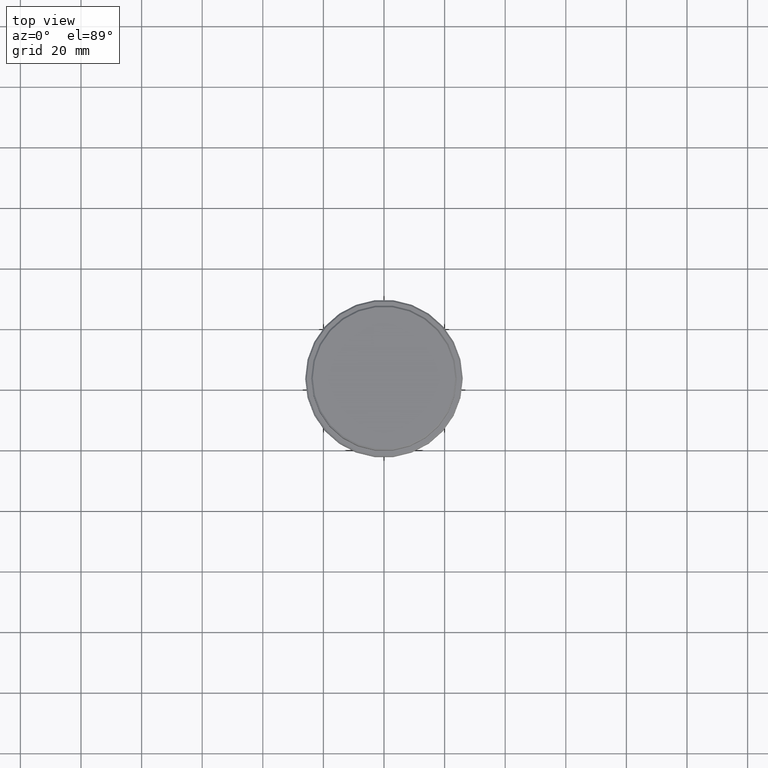
[diagram: clean part render]
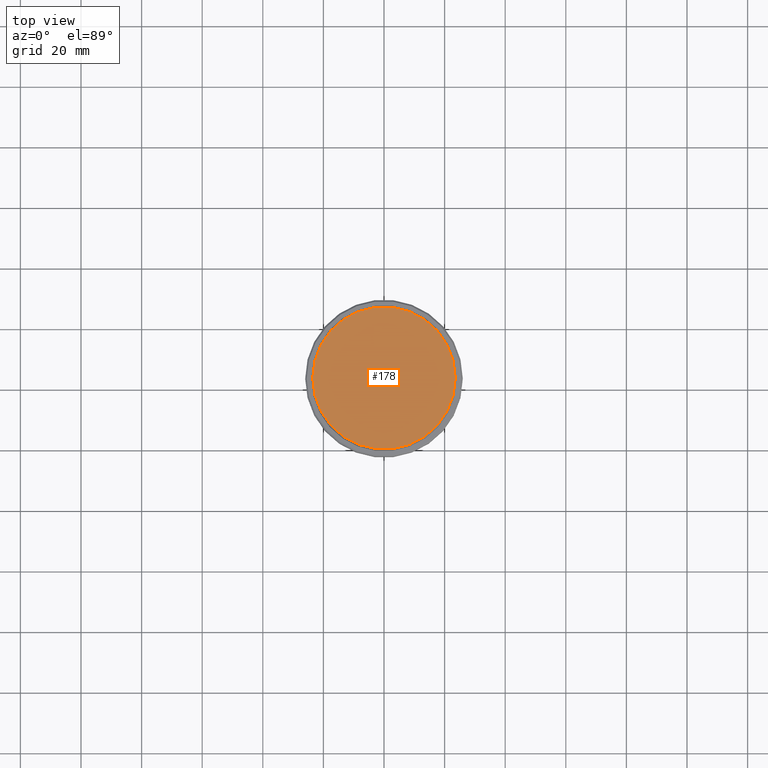
[diagram: same view with one face highlighted and labeled with its STEP entity id]
A machine part, top view. The second image highlights one B-rep face of the part: STEP entity #178.
In plain terms, the highlighted planar face has unit normal (0, -0, 1).
Its self-contained STEP definition (entity closure, byte-faithful):
#72 = CARTESIAN_POINT ( 'NONE',  ( 0.000000000000000000, 0.000000000000000000, 0.000000000000000000 ) ) ;
#82 = CIRCLE ( 'NONE', #344, 23.50000000000004619 ) ;
#156 = DIRECTION ( 'NONE',  ( 0.000000000000000000, -0.000000000000000000, 1.000000000000000000 ) ) ;
#178 = ADVANCED_FACE ( 'NONE', ( #1402 ), #1157, .T. ) ;
#200 = EDGE_CURVE ( 'NONE', #918, #1040, #82, .T. ) ;
#317 = DIRECTION ( 'NONE',  ( 1.000000000000000000, 0.000000000000000000, 0.000000000000000000 ) ) ;
#323 = EDGE_CURVE ( 'NONE', #1040, #918, #973, .T. ) ;
#329 = EDGE_LOOP ( 'NONE', ( #1282, #910 ) ) ;
#344 = AXIS2_PLACEMENT_3D ( 'NONE', #72, #726, #638 ) ;
#404 = DIRECTION ( 'NONE',  ( 1.000000000000000000, 0.000000000000000000, 0.000000000000000000 ) ) ;
#438 = CARTESIAN_POINT ( 'NONE',  ( -23.50000000000004619, 0.000000000000000000, 0.000000000000000000 ) ) ;
#578 = CARTESIAN_POINT ( 'NONE',  ( 23.50000000000004619, 2.908536147974966080E-15, 0.000000000000000000 ) ) ;
#622 = CARTESIAN_POINT ( 'NONE',  ( 0.000000000000000000, 0.000000000000000000, 0.000000000000000000 ) ) ;
#638 = DIRECTION ( 'NONE',  ( 1.000000000000000000, 0.000000000000000000, 0.000000000000000000 ) ) ;
#714 = AXIS2_PLACEMENT_3D ( 'NONE', #622, #156, #404 ) ;
#726 = DIRECTION ( 'NONE',  ( -0.000000000000000000, -0.000000000000000000, 1.000000000000000000 ) ) ;
#755 = AXIS2_PLACEMENT_3D ( 'NONE', #976, #1229, #317 ) ;
#910 = ORIENTED_EDGE ( 'NONE', *, *, #323, .T. ) ;
#918 = VERTEX_POINT ( 'NONE', #438 ) ;
#973 = CIRCLE ( 'NONE', #755, 23.50000000000004619 ) ;
#976 = CARTESIAN_POINT ( 'NONE',  ( 0.000000000000000000, 0.000000000000000000, 0.000000000000000000 ) ) ;
#1040 = VERTEX_POINT ( 'NONE', #578 ) ;
#1157 = PLANE ( 'NONE',  #714 ) ;
#1229 = DIRECTION ( 'NONE',  ( -0.000000000000000000, -0.000000000000000000, 1.000000000000000000 ) ) ;
#1282 = ORIENTED_EDGE ( 'NONE', *, *, #200, .T. ) ;
#1402 = FACE_OUTER_BOUND ( 'NONE', #329, .T. ) ;